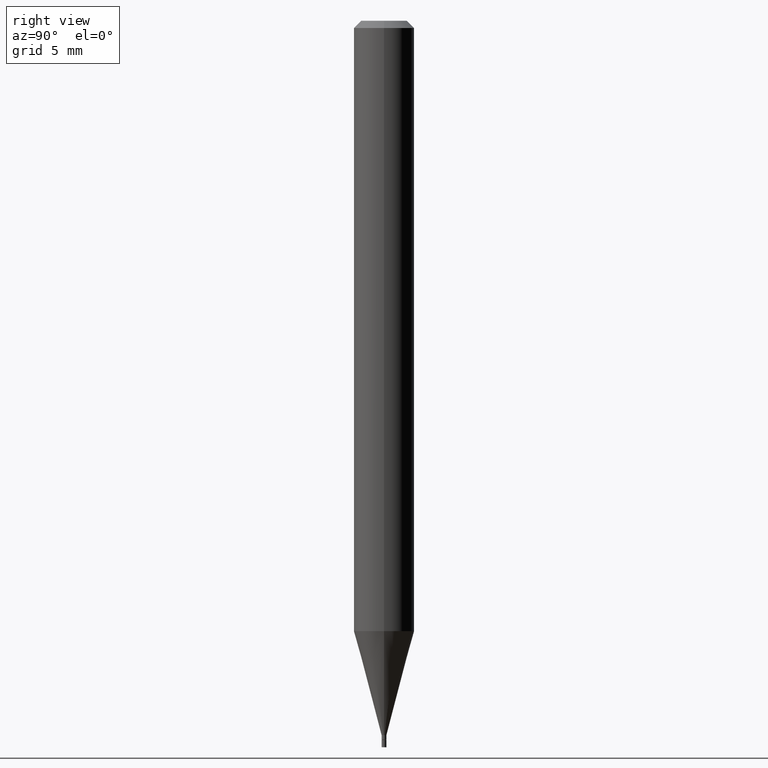
[diagram: clean part render]
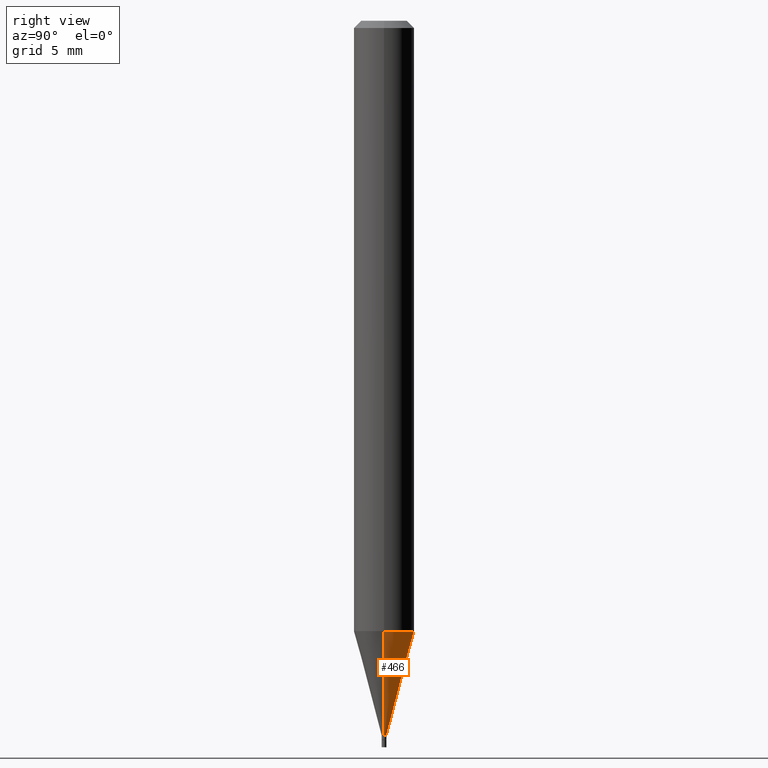
[diagram: same view with one face highlighted and labeled with its STEP entity id]
A machine part, right view. The second image highlights one B-rep face of the part: STEP entity #466.
In plain terms, the highlighted conical surface has half-angle 15 deg.
Its self-contained STEP definition (entity closure, byte-faithful):
#14 = AXIS2_PLACEMENT_3D ( 'NONE', #371, #39, #343 ) ;
#26 = CARTESIAN_POINT ( 'NONE',  ( 3.082286193725132894E-29, -4.400687794154770769E-15, -1.260407078564790062 ) ) ;
#29 = EDGE_CURVE ( 'NONE', #293, #283, #48, .T. ) ;
#32 = VERTEX_POINT ( 'NONE', #337 ) ;
#39 = DIRECTION ( 'NONE',  ( -2.445468806185136597E-29, 3.491481338843145583E-15, 1.000000000000000000 ) ) ;
#48 = LINE ( 'NONE', #125, #360 ) ;
#52 = AXIS2_PLACEMENT_3D ( 'NONE', #107, #396, #188 ) ;
#107 = CARTESIAN_POINT ( 'NONE',  ( 3.607066489123076592E-29, -5.149934974793640632E-15, -1.475000000000000311 ) ) ;
#125 = CARTESIAN_POINT ( 'NONE',  ( -0.004999999999999921174, -5.114407838005636380E-15, -1.475000000000000311 ) ) ;
#135 = DIRECTION ( 'NONE',  ( -2.445468806185136597E-29, 3.491481338843145583E-15, 1.000000000000000000 ) ) ;
#142 = ORIENTED_EDGE ( 'NONE', *, *, #313, .T. ) ;
#159 = CARTESIAN_POINT ( 'NONE',  ( 0.06249999999999999306, -4.837122961510163228E-15, -1.260407078564790062 ) ) ;
#188 = DIRECTION ( 'NONE',  ( 1.000000000000000000, -6.982962677686248567E-15, 0.000000000000000000 ) ) ;
#206 = CIRCLE ( 'NONE', #52, 0.004999999999999921174 ) ;
#218 = CARTESIAN_POINT ( 'NONE',  ( -0.06249999999999999306, -3.956598584304708153E-15, -1.260407078564790062 ) ) ;
#219 = EDGE_CURVE ( 'NONE', #32, #446, #355, .T. ) ;
#221 = CONICAL_SURFACE ( 'NONE', #14, 0.004999999999999921174, 0.2617993877991500740 ) ;
#224 = AXIS2_PLACEMENT_3D ( 'NONE', #26, #135, #424 ) ;
#272 = EDGE_CURVE ( 'NONE', #446, #283, #418, .T. ) ;
#276 = DIRECTION ( 'NONE',  ( -0.2588190451025213501, 5.211531920934551042E-15, 0.9659258262890682012 ) ) ;
#278 = VECTOR ( 'NONE', #422, 39.37007874015747433 ) ;
#283 = VERTEX_POINT ( 'NONE', #218 ) ;
#293 = VERTEX_POINT ( 'NONE', #314 ) ;
#296 = FACE_OUTER_BOUND ( 'NONE', #368, .T. ) ;
#306 = ORIENTED_EDGE ( 'NONE', *, *, #29, .T. ) ;
#313 = EDGE_CURVE ( 'NONE', #32, #293, #206, .T. ) ;
#314 = CARTESIAN_POINT ( 'NONE',  ( -0.004999999999999921174, -4.535503211155172266E-15, -1.475000000000000311 ) ) ;
#337 = CARTESIAN_POINT ( 'NONE',  ( 0.004999999999999921174, -5.184849788182071492E-15, -1.475000000000000311 ) ) ;
#343 = DIRECTION ( 'NONE',  ( 1.000000000000000000, -6.982962677686248567E-15, 0.000000000000000000 ) ) ;
#355 = LINE ( 'NONE', #452, #278 ) ;
#360 = VECTOR ( 'NONE', #276, 39.37007874015747433 ) ;
#368 = EDGE_LOOP ( 'NONE', ( #142, #306, #435, #458 ) ) ;
#371 = CARTESIAN_POINT ( 'NONE',  ( 3.607066489123076592E-29, -5.149934974793640632E-15, -1.475000000000000311 ) ) ;
#396 = DIRECTION ( 'NONE',  ( -2.445468806185136597E-29, 3.491481338843145583E-15, 1.000000000000000000 ) ) ;
#418 = CIRCLE ( 'NONE', #224, 0.06250000000000000000 ) ;
#422 = DIRECTION ( 'NONE',  ( 0.2588190451025213501, 1.565188264969621968E-15, 0.9659258262890682012 ) ) ;
#424 = DIRECTION ( 'NONE',  ( 1.000000000000000000, -6.982962677686262766E-15, 0.000000000000000000 ) ) ;
#435 = ORIENTED_EDGE ( 'NONE', *, *, #272, .F. ) ;
#446 = VERTEX_POINT ( 'NONE', #159 ) ;
#452 = CARTESIAN_POINT ( 'NONE',  ( 0.004999999999999921174, -5.184849788182071492E-15, -1.475000000000000311 ) ) ;
#458 = ORIENTED_EDGE ( 'NONE', *, *, #219, .F. ) ;
#466 = ADVANCED_FACE ( 'NONE', ( #296 ), #221, .T. ) ;